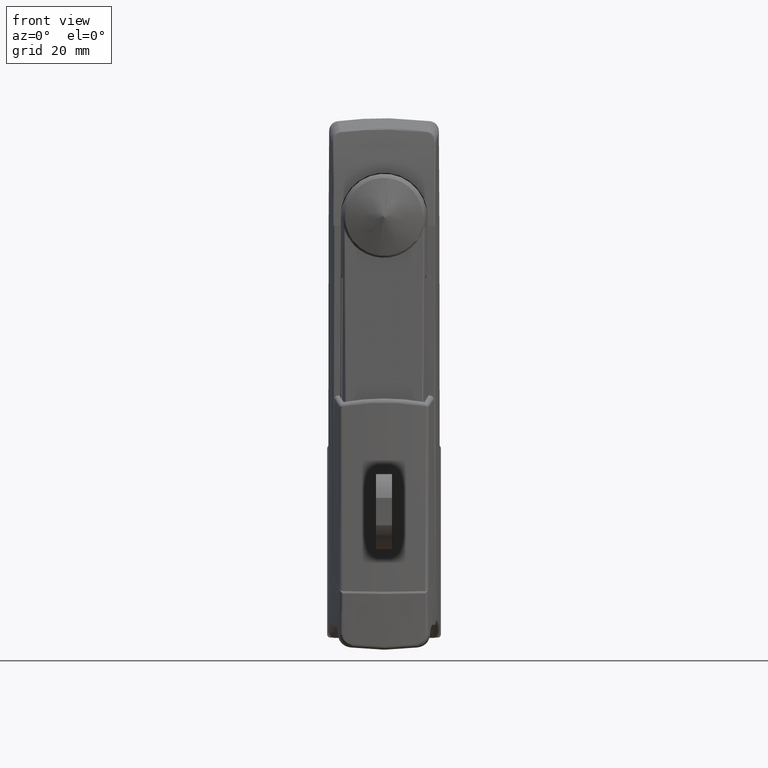
[diagram: clean part render]
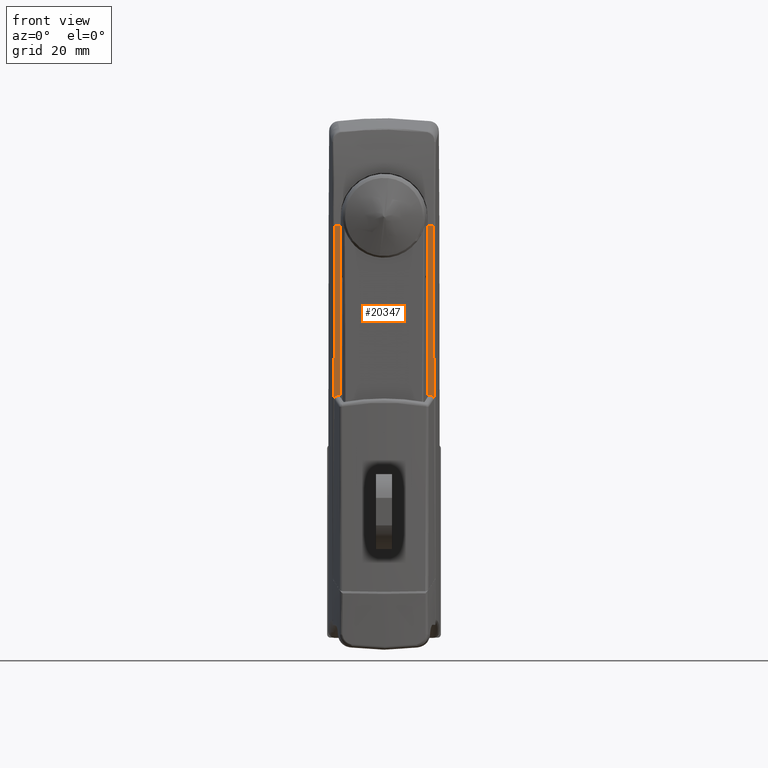
[diagram: same view with one face highlighted and labeled with its STEP entity id]
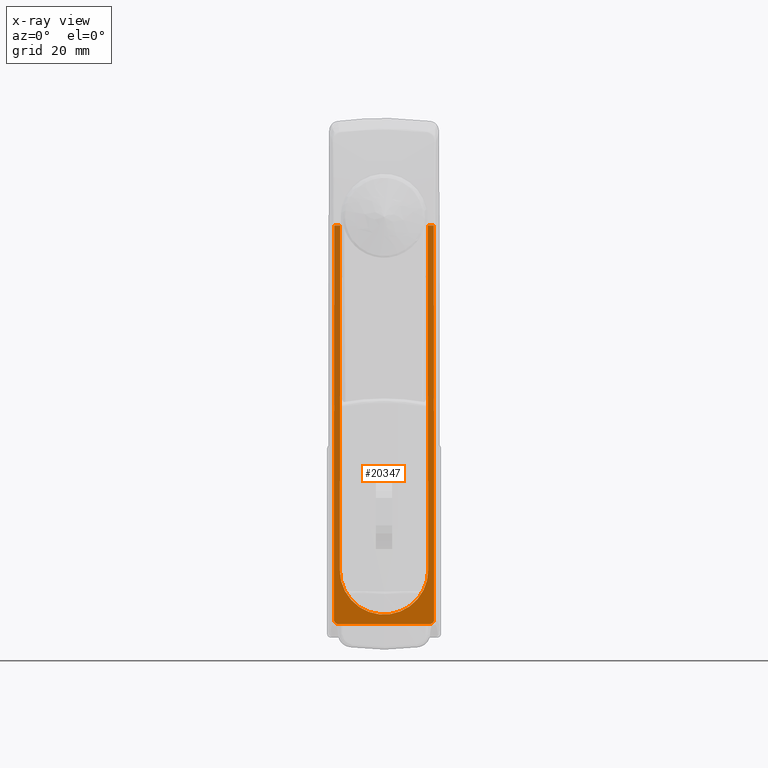
[diagram: x-ray of the same camera — body ghosted, the highlighted face saturated]
A machine part, front view. The second image highlights one B-rep face of the part: STEP entity #20347.
The next image is the same camera in x-ray: the body ghosted, the highlighted face saturated — about 0% of this face is hidden behind the body in this view.
In plain terms, the highlighted face is a freeform B-spline surface patch.
Its self-contained STEP definition (entity closure, byte-faithful):
#13843=CARTESIAN_POINT('',(-12.604473546541300,-13.499300596486400,-2.741120213272555));
#13844=VERTEX_POINT('',#13843);
#13858=CARTESIAN_POINT('',(-12.604473546531381,-13.592274088314500,-108.899222418351800));
#13859=VERTEX_POINT('',#13858);
#13865=CARTESIAN_POINT('',(-12.604473546541300,-13.499300596486400,-2.741120213272555));
#13866=CARTESIAN_POINT('',(-12.604473546547140,-13.499024957719721,-4.620846120730843));
#13867=CARTESIAN_POINT('',(-12.604473546547149,-13.498743044940790,-8.380616572099907));
#13868=CARTESIAN_POINT('',(-12.604473546547149,-13.499104136707180,-14.020485555284480));
#13869=CARTESIAN_POINT('',(-12.604473546547149,-13.500227188221000,-19.660903770915951));
#13870=CARTESIAN_POINT('',(-12.604473546547149,-13.502237143331399,-25.771524061110700));
#13871=CARTESIAN_POINT('',(-12.604473546547149,-13.505324707168841,-32.352446937734797));
#13872=CARTESIAN_POINT('',(-12.604473546547149,-13.509954543279800,-39.873528040673399));
#13873=CARTESIAN_POINT('',(-12.604473546547149,-13.516796155539200,-48.803285453039400));
#13874=CARTESIAN_POINT('',(-12.604473546547149,-13.526519975982540,-59.141407620673000));
#13875=CARTESIAN_POINT('',(-12.604473546547149,-13.539066881364240,-70.417715934326495));
#13876=CARTESIAN_POINT('',(-12.604473546547149,-13.553241845598000,-81.693501625597293));
#13877=CARTESIAN_POINT('',(-12.604473546547149,-13.570201202337261,-94.054019577383201));
#13878=CARTESIAN_POINT('',(-12.604473546547149,-13.583585274709179,-103.122519610949990));
#13879=CARTESIAN_POINT('',(-12.604473546547149,-13.591571165648100,-108.432619855883800));
#13880=CARTESIAN_POINT('',(-12.604473546547149,-13.592274088314500,-108.899222418351800));
#13881=B_SPLINE_CURVE_WITH_KNOTS('',3,(#13865,#13866,#13867,#13868,#13869,#13870,#13871,#13872,#13873,#13874,#13875,#13876,#13877,#13878,#13879,#13880),.UNSPECIFIED.,.F.,.U.,(4,1,1,1,1,1,1,1,1,1,1,1,1,4),(0.025171152677651,0.076954580100113,0.128746785195123,0.180540476940701,0.232339037800547,0.297084560215391,0.361834342794821,0.439532770863131,0.543085093806235,0.646633114555955,0.750177129612617,0.853715108713993,0.987145834872773,1.0),.UNSPECIFIED.);
#13882=EDGE_CURVE('',#13844,#13859,#13881,.T.);
#14022=CARTESIAN_POINT('',(-12.604473546531381,13.592274088300760,-108.899222409230010));
#14023=VERTEX_POINT('',#14022);
#14031=CARTESIAN_POINT('',(-12.604473546544220,13.499300596486400,-2.741120213272550));
#14032=VERTEX_POINT('',#14031);
#14040=CARTESIAN_POINT('',(-12.604473546531381,13.592274088300760,-108.899222409230010));
#14041=CARTESIAN_POINT('',(-12.604473546547149,13.591571165638960,-108.432619849802410));
#14042=CARTESIAN_POINT('',(-12.604473546547149,13.583585274704699,-103.122519607909400));
#14043=CARTESIAN_POINT('',(-12.604473546547149,13.570201202337261,-94.054019577383201));
#14044=CARTESIAN_POINT('',(-12.604473546547149,13.553241845598000,-81.693501625597392));
#14045=CARTESIAN_POINT('',(-12.604473546547149,13.539066881364240,-70.417715934326594));
#14046=CARTESIAN_POINT('',(-12.604473546547149,13.526519975982559,-59.141407620673000));
#14047=CARTESIAN_POINT('',(-12.604473546547149,13.516796155539200,-48.803285453039400));
#14048=CARTESIAN_POINT('',(-12.604473546547149,13.509954543279800,-39.873528040673399));
#14049=CARTESIAN_POINT('',(-12.604473546547149,13.505324707168860,-32.352446937734797));
#14050=CARTESIAN_POINT('',(-12.604473546547149,13.502237143331399,-25.771524061110700));
#14051=CARTESIAN_POINT('',(-12.604473546547149,13.500227188221000,-19.660903770915951));
#14052=CARTESIAN_POINT('',(-12.604473546547149,13.499104136707160,-14.020485555284480));
#14053=CARTESIAN_POINT('',(-12.604473546547149,13.498743044940770,-8.380616572099907));
#14054=CARTESIAN_POINT('',(-12.604473546547149,13.499024957719721,-4.620846120730834));
#14055=CARTESIAN_POINT('',(-12.604473546547149,13.499300596486400,-2.741120213272542));
#14056=B_SPLINE_CURVE_WITH_KNOTS('',3,(#14040,#14041,#14042,#14043,#14044,#14045,#14046,#14047,#14048,#14049,#14050,#14051,#14052,#14053,#14054,#14055),.UNSPECIFIED.,.F.,.U.,(4,1,1,1,1,1,1,1,1,1,1,1,1,4),(0.0,0.012855555573557,0.146300715920764,0.249849895491047,0.353405111669571,0.456964333974477,0.560527858938167,0.638234692220055,0.702991479262319,0.767744005679142,0.819548169972390,0.871347464624640,0.923145272465501,0.974934301684268),.UNSPECIFIED.);
#14057=EDGE_CURVE('',#14023,#14032,#14056,.T.);
#14080=CARTESIAN_POINT('',(-12.604473546531381,13.592274088300760,-108.899222409230010));
#14081=CARTESIAN_POINT('',(-12.604473546531381,13.593624489053299,-109.734022413559400));
#14082=CARTESIAN_POINT('',(-12.604473546531370,13.461951385756119,-111.181191459578700));
#14083=CARTESIAN_POINT('',(-12.604473546531400,12.867924438129730,-113.505085107013600));
#14084=CARTESIAN_POINT('',(-12.604473546531329,11.881795751890330,-115.699940275898900));
#14085=CARTESIAN_POINT('',(-12.604473546531480,10.422773440407560,-117.748612484639390));
#14086=CARTESIAN_POINT('',(-12.604473546531350,8.676377736018019,-119.476310024374000));
#14087=CARTESIAN_POINT('',(-12.604473546531400,6.924794452282232,-120.679530508887200));
#14088=CARTESIAN_POINT('',(-12.604473546531381,5.066258313542277,-121.573457871902700));
#14089=CARTESIAN_POINT('',(-12.604473546531390,3.476743409563190,-122.099108460037700));
#14090=CARTESIAN_POINT('',(-12.604473546531381,1.670562111356645,-122.447223156222800));
#14091=CARTESIAN_POINT('',(-12.604473546531340,-0.278961702177573,-122.567155663170500));
#14092=CARTESIAN_POINT('',(-12.604473546531461,-2.391424991208489,-122.358883073787100));
#14093=CARTESIAN_POINT('',(-12.604473546531249,-4.765673514744787,-121.732580285575490));
#14094=CARTESIAN_POINT('',(-12.604473546531629,-6.941809648592367,-120.702244079806800));
#14095=CARTESIAN_POINT('',(-12.604473546530990,-8.787855983691394,-119.348672589857300));
#14096=CARTESIAN_POINT('',(-12.604473546531700,-10.263429090096540,-117.906776149009100));
#14097=CARTESIAN_POINT('',(-12.604473546531191,-11.581112626795280,-116.171875763002300));
#14098=CARTESIAN_POINT('',(-12.604473546531439,-12.647148908709021,-114.080459581605000));
#14099=CARTESIAN_POINT('',(-12.604473546531370,-13.404749210816860,-111.626473388605110));
#14100=CARTESIAN_POINT('',(-12.604473546531390,-13.593971397531231,-109.900995344308800));
#14101=CARTESIAN_POINT('',(-12.604473546531381,-13.592274088314500,-108.899222418351800));
#14102=B_SPLINE_CURVE_WITH_KNOTS('',3,(#14080,#14081,#14082,#14083,#14084,#14085,#14086,#14087,#14088,#14089,#14090,#14091,#14092,#14093,#14094,#14095,#14096,#14097,#14098,#14099,#14100,#14101),.UNSPECIFIED.,.F.,.U.,(4,1,1,1,1,1,1,1,1,1,1,1,1,1,1,1,1,1,1,4),(0.000000226759333,2.504401770202591,4.341051040729376,7.179433531057406,9.683893826292668,11.854457847283220,14.525742382883630,16.028431262725359,18.032021019325050,19.534710155376139,21.538295348772820,23.875792191802489,25.879392046911580,28.884662504286720,31.055154267318390,32.724840909844872,35.062330652250687,37.566811455668571,39.737359702503419,42.742658786218179),.UNSPECIFIED.);
#14103=EDGE_CURVE('',#14023,#13859,#14102,.T.);
#14501=CARTESIAN_POINT('',(-12.604473546541300,-15.310058754993280,-2.741120213272555));
#14502=VERTEX_POINT('',#14501);
#14574=CARTESIAN_POINT('',(-12.604473546541300,-15.453305850701600,-124.013748283051000));
#14575=VERTEX_POINT('',#14574);
#14597=CARTESIAN_POINT('',(-12.604473546541300,-15.453305850701600,-124.013748283051000));
#14598=CARTESIAN_POINT('',(-12.604473546541300,-15.310058754993280,-2.741120213272555));
#14599=QUASI_UNIFORM_CURVE('',1,(#14597,#14598),.UNSPECIFIED.,.F.,.U.);
#14600=EDGE_CURVE('',#14575,#14502,#14599,.T.);
#14936=CARTESIAN_POINT('',(-12.604473546541300,-13.938181688146759,-125.508523251945210));
#14937=VERTEX_POINT('',#14936);
#14984=CARTESIAN_POINT('',(-12.604473546541300,-13.938181688146759,-125.508523251945600));
#14985=CARTESIAN_POINT('',(-12.604473546541300,-14.037560061585591,-125.508523251945700));
#14986=CARTESIAN_POINT('',(-12.604473546541310,-14.135829229979640,-125.499037603764510));
#14987=CARTESIAN_POINT('',(-12.604473546541300,-14.281580567193590,-125.470678082424100));
#14988=CARTESIAN_POINT('',(-12.604473546541310,-14.329983520056199,-125.458801589682690));
#14989=CARTESIAN_POINT('',(-12.604473546541300,-14.424513391204890,-125.430709581417500));
#14990=CARTESIAN_POINT('',(-12.604473546541310,-14.517190778562410,-125.398219134843000));
#14991=CARTESIAN_POINT('',(-12.604473546541310,-14.606213608997310,-125.357051504020700));
#14992=CARTESIAN_POINT('',(-12.604473546541310,-14.693382267972350,-125.311481427778900));
#14993=CARTESIAN_POINT('',(-12.604473546541310,-14.736196438811101,-125.286391170257300));
#14994=CARTESIAN_POINT('',(-12.604473546541310,-14.860660351686770,-125.204938712336800));
#14995=CARTESIAN_POINT('',(-12.604473546541310,-14.937115766933390,-125.143367621573300));
#14996=CARTESIAN_POINT('',(-12.604473546541310,-15.042235422479781,-125.040349090828400));
#14997=CARTESIAN_POINT('',(-12.604473546541310,-15.075670103726679,-125.004220008389400));
#14998=CARTESIAN_POINT('',(-12.604473546541310,-15.139224800677230,-124.928266466776190));
#14999=CARTESIAN_POINT('',(-12.604473546541310,-15.169209620900590,-124.888556240453600));
#15000=CARTESIAN_POINT('',(-12.604473546541300,-15.252232358443450,-124.766462848572800));
#15001=CARTESIAN_POINT('',(-12.604473546541300,-15.299077294055831,-124.680368580147800));
#15002=CARTESIAN_POINT('',(-12.604473546541300,-15.356472003495050,-124.544114319097600));
#15003=CARTESIAN_POINT('',(-12.604473546541310,-15.373513829807299,-124.497231301553900));
#15004=CARTESIAN_POINT('',(-12.604473546541310,-15.402561887260580,-124.402749284228190));
#15005=CARTESIAN_POINT('',(-12.604473546541310,-15.414627574077899,-124.355092358475500));
#15006=CARTESIAN_POINT('',(-12.604473546541300,-15.443623387341219,-124.210903230847610));
#15007=CARTESIAN_POINT('',(-12.604473546541300,-15.453423304130981,-124.113164697160300));
#15008=CARTESIAN_POINT('',(-12.604473546541300,-15.453305850701650,-124.013748283051000));
#15009=B_SPLINE_CURVE_WITH_KNOTS('',3,(#14984,#14985,#14986,#14987,#14988,#14989,#14990,#14991,#14992,#14993,#14994,#14995,#14996,#14997,#14998,#14999,#15000,#15001,#15002,#15003,#15004,#15005,#15006,#15007,#15008),.UNSPECIFIED.,.F.,.U.,(4,2,2,1,2,2,2,2,2,2,2,2,4),(0.0,0.125000000000031,0.187500000000043,0.250000000000056,0.312500000000068,0.375000000000080,0.500000000000105,0.562500000000104,0.625000000000091,0.750000000000050,0.812500000000038,0.875000000000025,1.0),.UNSPECIFIED.);
#15010=EDGE_CURVE('',#14937,#14575,#15009,.T.);
#15186=CARTESIAN_POINT('',(-12.604473546541300,13.938181606042839,-125.508523251945600));
#15187=VERTEX_POINT('',#15186);
#15209=CARTESIAN_POINT('',(-12.604473546541300,13.938181606042839,-125.508523251945600));
#15210=CARTESIAN_POINT('',(-12.604473546541300,-13.938181688146759,-125.508523251945210));
#15211=QUASI_UNIFORM_CURVE('',1,(#15209,#15210),.UNSPECIFIED.,.F.,.U.);
#15212=EDGE_CURVE('',#15187,#14937,#15211,.T.);
#15577=CARTESIAN_POINT('',(-12.604473546541300,15.453305770165549,-124.013748283408010));
#15578=VERTEX_POINT('',#15577);
#15623=CARTESIAN_POINT('',(-12.604473546541300,15.453305770165549,-124.013748283408010));
#15624=CARTESIAN_POINT('',(-12.604473546541300,15.453423256943699,-124.113192924798400));
#15625=CARTESIAN_POINT('',(-12.604473546541310,15.443617641217330,-124.211599696708210));
#15626=CARTESIAN_POINT('',(-12.604473546541310,15.414042938923480,-124.357654972221200));
#15627=CARTESIAN_POINT('',(-12.604473546541310,15.401765113750249,-124.405641329130400));
#15628=CARTESIAN_POINT('',(-12.604473546541300,15.372698814189681,-124.499564053348610));
#15629=CARTESIAN_POINT('',(-12.604473546541310,15.339075628308141,-124.591665396057610));
#15630=CARTESIAN_POINT('',(-12.604473546541310,15.296433216003210,-124.680161765748100));
#15631=CARTESIAN_POINT('',(-12.604473546541310,15.249196959609909,-124.766821981958100));
#15632=CARTESIAN_POINT('',(-12.604473546541310,15.223136628439651,-124.809411905188900));
#15633=CARTESIAN_POINT('',(-12.604473546541300,15.139635035912679,-124.931712546294410));
#15634=CARTESIAN_POINT('',(-12.604473546541310,15.076610732175739,-125.006763249627300));
#15635=CARTESIAN_POINT('',(-12.604473546541310,14.971283939291901,-125.109830209385810));
#15636=CARTESIAN_POINT('',(-12.604473546541300,14.934345497677580,-125.142604460669900));
#15637=CARTESIAN_POINT('',(-12.604473546541310,14.856802364462400,-125.204797213697500));
#15638=CARTESIAN_POINT('',(-12.604473546541310,14.816823652660460,-125.233716886198100));
#15639=CARTESIAN_POINT('',(-12.604473546541310,14.693409575858540,-125.314204537977300));
#15640=CARTESIAN_POINT('',(-12.604473546541310,14.606527823763541,-125.359558049720700));
#15641=CARTESIAN_POINT('',(-12.604473546541310,14.469258527815860,-125.415062202200600));
#15642=CARTESIAN_POINT('',(-12.604473546541300,14.422135445703489,-125.431499598931890));
#15643=CARTESIAN_POINT('',(-12.604473546541310,14.327471872172350,-125.459460171853190));
#15644=CARTESIAN_POINT('',(-12.604473546541310,14.279740350677940,-125.471081009538300));
#15645=CARTESIAN_POINT('',(-12.604473546541310,14.135375218450800,-125.499034203911610));
#15646=CARTESIAN_POINT('',(-12.604473546541300,14.037582223306940,-125.508523251945700));
#15647=CARTESIAN_POINT('',(-12.604473546541300,13.938181606042820,-125.508523251945410));
#15648=B_SPLINE_CURVE_WITH_KNOTS('',3,(#15623,#15624,#15625,#15626,#15627,#15628,#15629,#15630,#15631,#15632,#15633,#15634,#15635,#15636,#15637,#15638,#15639,#15640,#15641,#15642,#15643,#15644,#15645,#15646,#15647),.UNSPECIFIED.,.F.,.U.,(4,2,2,1,2,2,2,2,2,2,2,2,4),(0.0,0.124999999999986,0.187499999999978,0.249999999999971,0.312499999999963,0.374999999999956,0.499999999999956,0.562499999999968,0.624999999999980,0.749999999999986,0.812499999999989,0.874999999999993,1.0),.UNSPECIFIED.);
#15649=EDGE_CURVE('',#15578,#15187,#15648,.T.);
#15734=CARTESIAN_POINT('',(-12.604473546541300,15.310058674246349,-2.741120213272550));
#15735=VERTEX_POINT('',#15734);
#15804=CARTESIAN_POINT('',(-12.604473546541300,15.310058674246349,-2.741120213272550));
#15805=CARTESIAN_POINT('',(-12.604473546541300,15.453305770165549,-124.013748283408010));
#15806=QUASI_UNIFORM_CURVE('',1,(#15804,#15805),.UNSPECIFIED.,.F.,.U.);
#15807=EDGE_CURVE('',#15735,#15578,#15806,.T.);
#20154=CARTESIAN_POINT('',(-12.604473546541300,15.310058674246349,-2.741120213272550));
#20155=CARTESIAN_POINT('',(-12.604473546544220,13.499300596486400,-2.741120213272550));
#20156=QUASI_UNIFORM_CURVE('',1,(#20154,#20155),.UNSPECIFIED.,.F.,.U.);
#20157=EDGE_CURVE('',#15735,#14032,#20156,.T.);
#20162=CARTESIAN_POINT('',(-12.604473546541300,-13.499300596486400,-2.741120213272555));
#20163=CARTESIAN_POINT('',(-12.604473546541300,-15.310058754993280,-2.741120213272555));
#20164=QUASI_UNIFORM_CURVE('',1,(#20162,#20163),.UNSPECIFIED.,.F.,.U.);
#20165=EDGE_CURVE('',#13844,#14502,#20164,.T.);
#20330=CARTESIAN_POINT('',(-12.604473546541300,-16.997091041260902,-131.640754795780310));
#20331=CARTESIAN_POINT('',(-12.604473546541300,16.997091789704768,-131.640754795780310));
#20332=CARTESIAN_POINT('',(-12.604473546541300,-16.997091041260902,3.391114623440451));
#20333=CARTESIAN_POINT('',(-12.604473546541300,16.997091789704768,3.391114623440451));
#20334=B_SPLINE_SURFACE_WITH_KNOTS('',1,1,((#20330,#20332),(#20331,#20333)),.UNSPECIFIED.,.F.,.F.,.U.,(2,2),(2,2),(0.0,33.994182830965670),(0.0,135.031869419220700),.UNSPECIFIED.);
#20335=ORIENTED_EDGE('',*,*,#14103,.F.);
#20336=ORIENTED_EDGE('',*,*,#14057,.T.);
#20337=ORIENTED_EDGE('',*,*,#20157,.F.);
#20338=ORIENTED_EDGE('',*,*,#15807,.T.);
#20339=ORIENTED_EDGE('',*,*,#15649,.T.);
#20340=ORIENTED_EDGE('',*,*,#15212,.T.);
#20341=ORIENTED_EDGE('',*,*,#15010,.T.);
#20342=ORIENTED_EDGE('',*,*,#14600,.T.);
#20343=ORIENTED_EDGE('',*,*,#20165,.F.);
#20344=ORIENTED_EDGE('',*,*,#13882,.T.);
#20345=EDGE_LOOP('',(#20335,#20336,#20337,#20338,#20339,#20340,#20341,#20342,#20343,#20344));
#20346=FACE_OUTER_BOUND('',#20345,.T.);
#20347=ADVANCED_FACE('',(#20346),#20334,.F.);